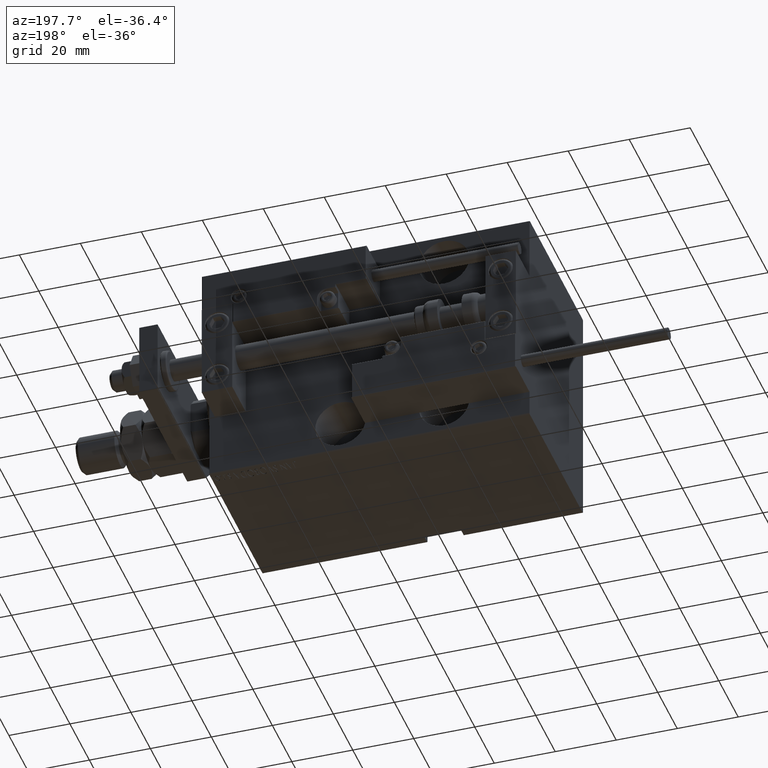
[diagram: clean part render]
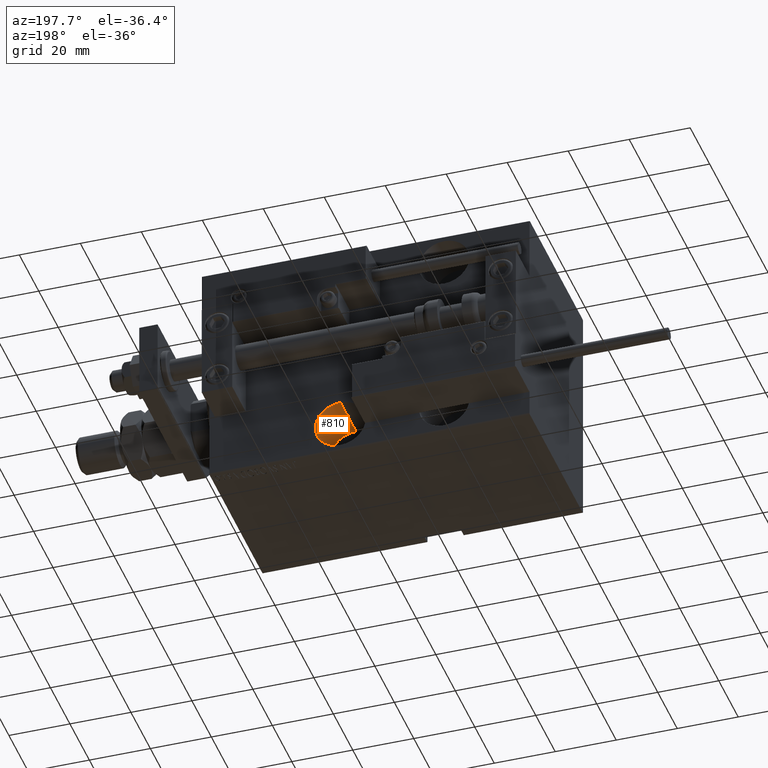
[diagram: same view with one face highlighted and labeled with its STEP entity id]
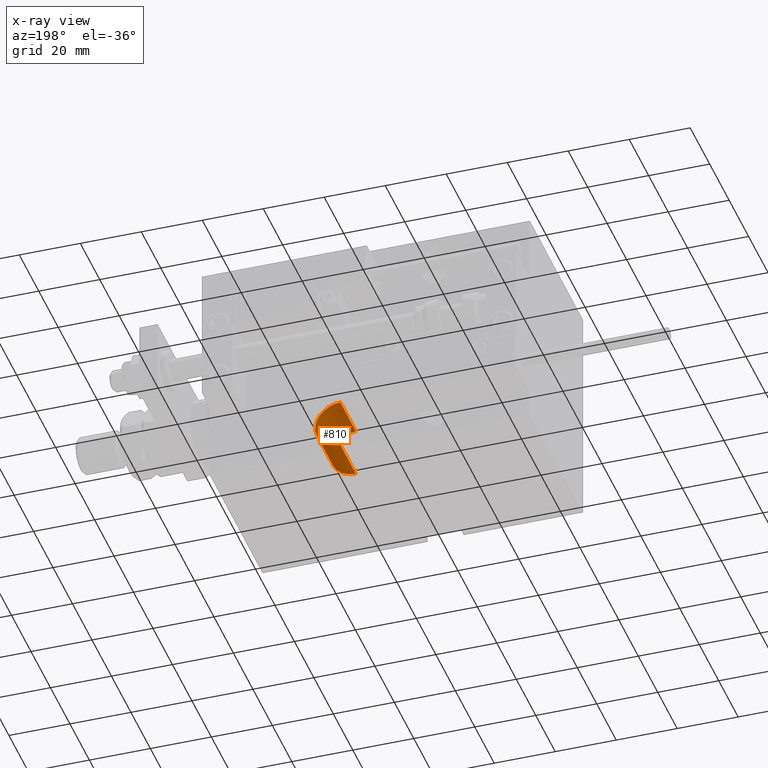
[diagram: x-ray of the same camera — body ghosted, the highlighted face saturated]
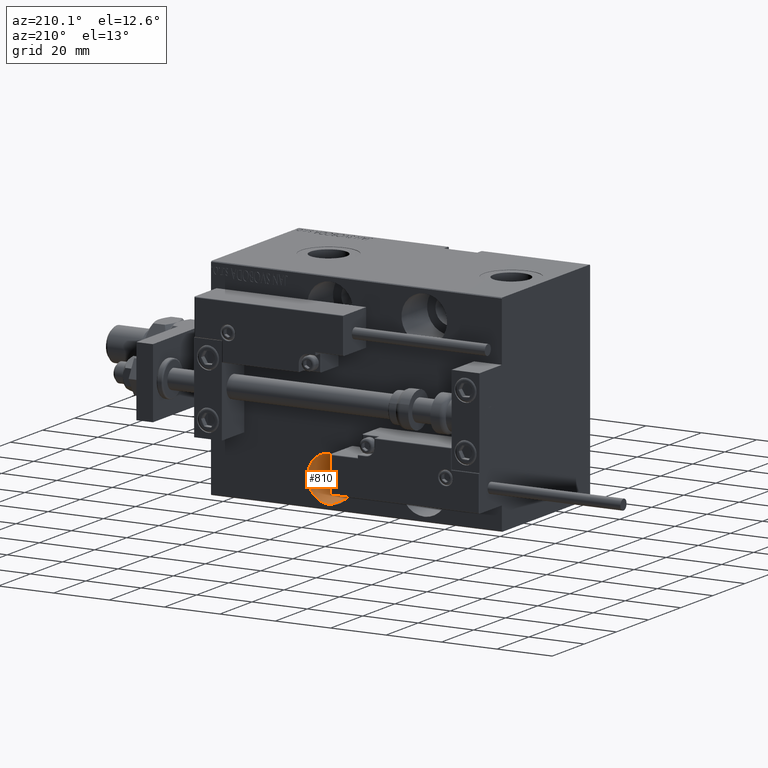
[diagram: same view with one face highlighted and labeled with its STEP entity id]
A machine part, auxiliary view. The second image highlights one B-rep face of the part: STEP entity #810.
The next image is the same camera in x-ray: the body ghosted, the highlighted face saturated — about 0% of this face is hidden behind the body in this view.
A second angle (auxiliary view) of the same face is appended — the face is thin or edge-on in the first view.
In plain terms, the highlighted cylindrical surface (edge-blend (fillet) strip) has radius 8.25 mm, axis along (0, 1, -0).
Its self-contained STEP definition (entity closure, byte-faithful):
#478 = DIRECTION ( 'NONE',  ( 0.000000000000000000, -1.000000000000000000, 0.000000000000000000 ) ) ;
#810 = ADVANCED_FACE ( 'NONE', ( #21294 ), #37244, .F. ) ;
#1647 = ORIENTED_EDGE ( 'NONE', *, *, #36254, .F. ) ;
#3444 = CARTESIAN_POINT ( 'NONE',  ( 43.00000000000000000, -11.50000000000000000, -35.74999999999998579 ) ) ;
#3599 = DIRECTION ( 'NONE',  ( 0.000000000000000000, 0.000000000000000000, -1.000000000000000000 ) ) ;
#4656 = ORIENTED_EDGE ( 'NONE', *, *, #16847, .T. ) ;
#5275 = CIRCLE ( 'NONE', #11148, 8.249999999999996447 ) ;
#6622 = EDGE_LOOP ( 'NONE', ( #24607, #15943, #4656, #1647 ) ) ;
#9594 = EDGE_CURVE ( 'NONE', #13164, #45402, #11539, .T. ) ;
#10181 = VERTEX_POINT ( 'NONE', #14032 ) ;
#11148 = AXIS2_PLACEMENT_3D ( 'NONE', #39662, #39414, #3599 ) ;
#11539 = LINE ( 'NONE', #27465, #33425 ) ;
#13164 = VERTEX_POINT ( 'NONE', #28987 ) ;
#14032 = CARTESIAN_POINT ( 'NONE',  ( 43.00000000000000000, -27.50000000000000000, -35.74999999999998579 ) ) ;
#15943 = ORIENTED_EDGE ( 'NONE', *, *, #9594, .T. ) ;
#16847 = EDGE_CURVE ( 'NONE', #45402, #10181, #5275, .T. ) ;
#18068 = EDGE_CURVE ( 'NONE', #13164, #24040, #33244, .T. ) ;
#20441 = DIRECTION ( 'NONE',  ( -0.000000000000000000, -1.000000000000000000, -0.000000000000000000 ) ) ;
#20605 = AXIS2_PLACEMENT_3D ( 'NONE', #29130, #30157, #45110 ) ;
#21294 = FACE_OUTER_BOUND ( 'NONE', #6622, .T. ) ;
#24040 = VERTEX_POINT ( 'NONE', #3444 ) ;
#24607 = ORIENTED_EDGE ( 'NONE', *, *, #18068, .F. ) ;
#24622 = CARTESIAN_POINT ( 'NONE',  ( 43.00000000000000000, -11.50000000000000000, -35.74999999999998579 ) ) ;
#25129 = LINE ( 'NONE', #24622, #50417 ) ;
#27205 = DIRECTION ( 'NONE',  ( -0.000000000000000000, -1.000000000000000000, -0.000000000000000000 ) ) ;
#27465 = CARTESIAN_POINT ( 'NONE',  ( 43.00000000000000000, -11.50000000000000000, -19.24999999999998934 ) ) ;
#28222 = AXIS2_PLACEMENT_3D ( 'NONE', #44146, #478, #35758 ) ;
#28987 = CARTESIAN_POINT ( 'NONE',  ( 43.00000000000000000, -11.50000000000000000, -19.24999999999998934 ) ) ;
#29130 = CARTESIAN_POINT ( 'NONE',  ( 43.00000000000000000, -11.50000000000000000, -27.49999999999998579 ) ) ;
#30157 = DIRECTION ( 'NONE',  ( -0.000000000000000000, -1.000000000000000000, -0.000000000000000000 ) ) ;
#33244 = CIRCLE ( 'NONE', #28222, 8.249999999999996447 ) ;
#33425 = VECTOR ( 'NONE', #27205, 1000.000000000000000 ) ;
#35758 = DIRECTION ( 'NONE',  ( 0.000000000000000000, 0.000000000000000000, -1.000000000000000000 ) ) ;
#36254 = EDGE_CURVE ( 'NONE', #24040, #10181, #25129, .T. ) ;
#37244 = CYLINDRICAL_SURFACE ( 'NONE', #20605, 8.249999999999996447 ) ;
#39414 = DIRECTION ( 'NONE',  ( 0.000000000000000000, -1.000000000000000000, 0.000000000000000000 ) ) ;
#39552 = CARTESIAN_POINT ( 'NONE',  ( 43.00000000000000000, -27.50000000000000000, -19.24999999999998934 ) ) ;
#39662 = CARTESIAN_POINT ( 'NONE',  ( 43.00000000000000000, -27.50000000000000000, -27.49999999999998579 ) ) ;
#44146 = CARTESIAN_POINT ( 'NONE',  ( 43.00000000000000000, -11.50000000000000000, -27.49999999999998579 ) ) ;
#45110 = DIRECTION ( 'NONE',  ( 0.000000000000000000, 0.000000000000000000, -1.000000000000000000 ) ) ;
#45402 = VERTEX_POINT ( 'NONE', #39552 ) ;
#50417 = VECTOR ( 'NONE', #20441, 1000.000000000000000 ) ;